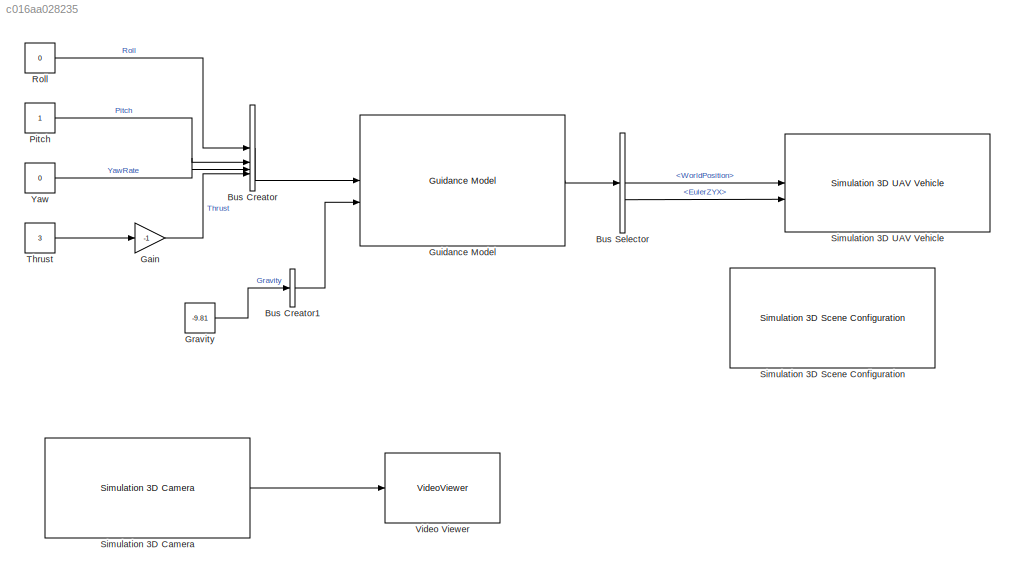
MODEL slx_c016aa028235
KIND model
CONFIG AbsTol = auto
CONFIG EnableMultiTasking = off
CONFIG FixedStep = auto
CONFIG MaxStep = auto
CONFIG MinStep = auto
CONFIG RelTol = 1e-3
CONFIG SampleTimeConstraint = Unconstrained
CONFIG SolverName = VariableStepAuto
CONFIG StartTime = 0.0
CONFIG StopTime = 10.0
BLOCK [BusCreator] Bus Creator
  DisplayOption = bar
  InheritFromInputs = on
  Inputs = Roll,Pitch,YawRate,Thrust
  NonVirtualBus = on
  OutDataTypeStr = Bus: MultirotorGuidanceControlBus
BLOCK [BusCreator] Bus Creator1
  DisplayOption = bar
  InheritFromInputs = on
  Inputs = Gravity
  NonVirtualBus = on
  OutDataTypeStr = Bus: MultirotorGuidanceEnvironmentBus
BLOCK [BusSelector] Bus Selector
  OutputSignals = WorldPosition,EulerZYX
BLOCK [Gain] Gain
  Gain = -1
BLOCK [Constant] Gravity
  Value = -9.81
BLOCK [Reference] Guidance Model  REF=uavalgslib/Guidance Model
  SourceBlock = uavalgslib/Guidance Model
  SourceType = Guidance Model
BLOCK [Constant] Pitch
BLOCK [Constant] Roll
  Value = 0
BLOCK [Reference] Simulation 3D Camera  REF=sim3dcameralib/Simulation 3D Camera
  LibrarySourceBlock = uavsim3dlib/Simulation 3D Camera
  Priority = 1
  SourceBlock = sim3dcameralib/Simulation 3D Camera
  SourceType = Simulation 3D Camera
BLOCK [Reference] Simulation 3D Scene Configuration  REF=sim3dlib/Simulation 3D Scene Configuration
  LibrarySourceBlock = uavsim3dlib/Simulation 3D Scene Configuration
  Priority = 0
  SourceBlock = sim3dlib/Simulation 3D Scene Configuration
  SourceType = Simulation 3D Scene Configuration
BLOCK [Reference] Simulation 3D UAV Vehicle  REF=uavsim3dlib/Simulation 3D UAV Vehicle
  Priority = -1
  SourceBlock = uavsim3dlib/Simulation 3D UAV Vehicle
  SourceType = Simulation 3D UAV Vehicle
BLOCK [Constant] Thrust
  Value = 3
BLOCK [VideoViewer] Video Viewer
  FigPos = [644 684.666666666667 418 304]
  ScopeSpecificationString = vipscopes.VideoViewerScopeCfg('CurrentConfiguration', extmgr.ConfigurationSet(extmgr.Configuration('Core','General UI',true),extmgr.Configuration('Core','Source UI',true),extmgr.Configuration('Sources','WiredSimulink',true),extmgr.Configuration('Visuals','Video',true),extmgr.Configuration('Tools','Image Navigation Tools',true),extmgr.Configuration('Tools','Image Tool',true),extmgr.Configuration('T...<+75ch>
BLOCK [Constant] Yaw
  Value = 0
LINE Bus Creator1:1 -> Guidance Model:2
LINE Bus Creator:1 -> Guidance Model:1
LINE Bus Selector:1 -> Simulation 3D UAV Vehicle:1
LINE Bus Selector:2 -> Simulation 3D UAV Vehicle:2
LINE Gain:1 -> Bus Creator:4
LINE Gravity:1 -> Bus Creator1:1
LINE Guidance Model:1 -> Bus Selector:1
LINE Pitch:1 -> Bus Creator:2
LINE Roll:1 -> Bus Creator:1
LINE Simulation 3D Camera:1 -> Video Viewer:1
LINE Thrust:1 -> Gain:1
LINE Yaw:1 -> Bus Creator:3
